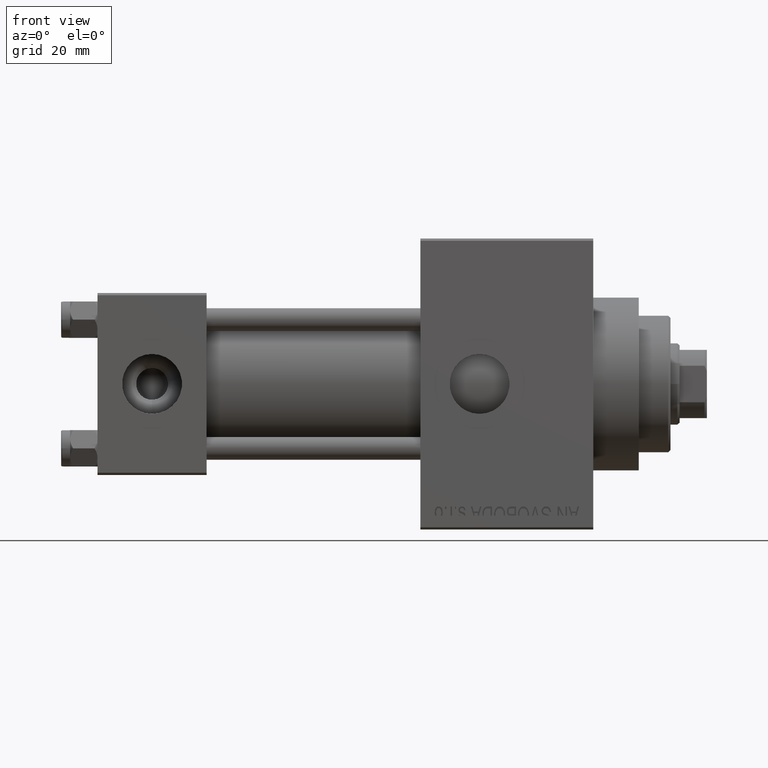
[diagram: clean part render]
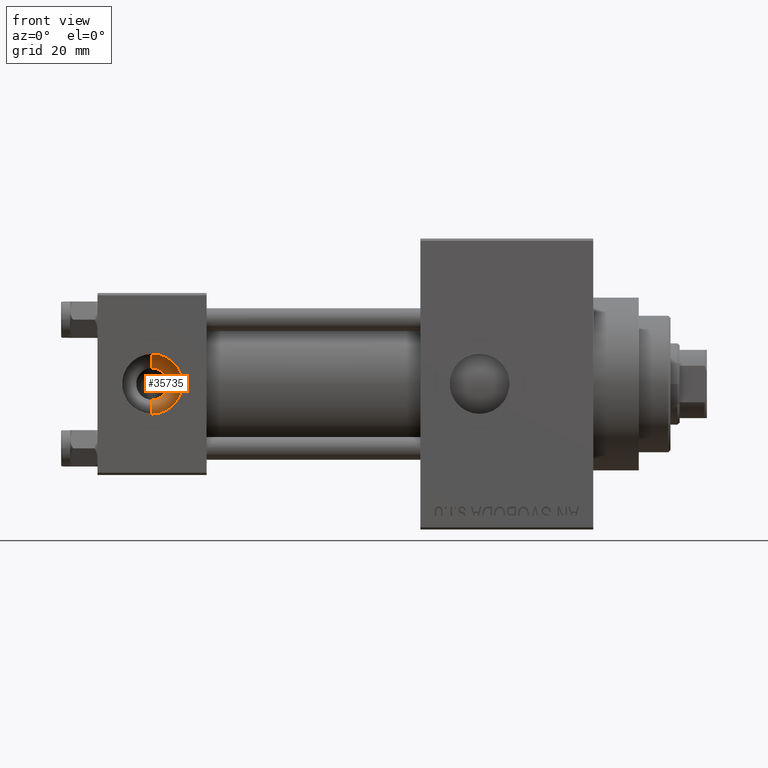
[diagram: same view with one face highlighted and labeled with its STEP entity id]
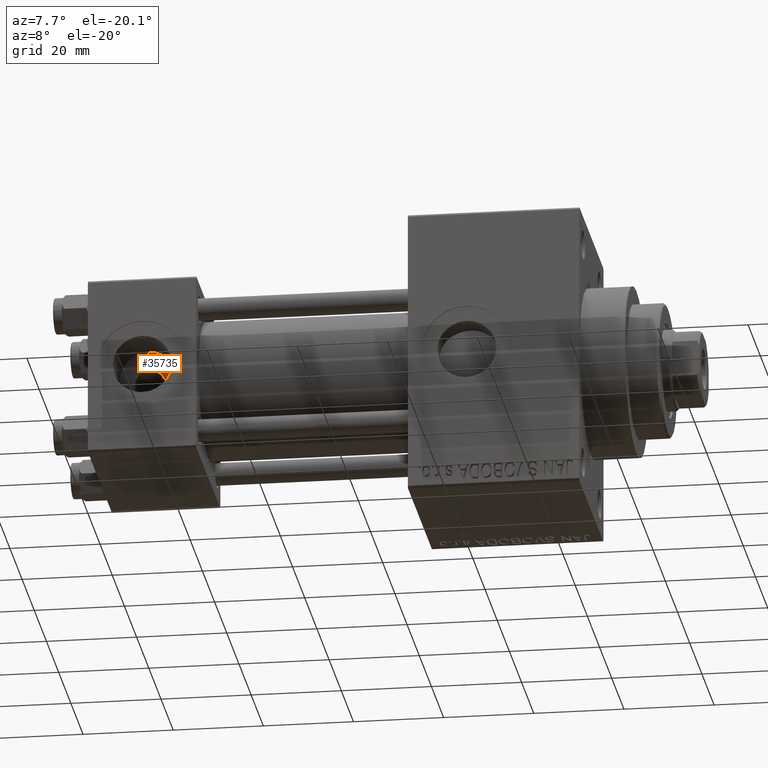
[diagram: same view with one face highlighted and labeled with its STEP entity id]
A machine part, front view. The second image highlights one B-rep face of the part: STEP entity #35735.
A second angle (auxiliary view) of the same face is appended — the face is thin or edge-on in the first view.
In plain terms, the highlighted conical surface has half-angle 45 deg.
Its self-contained STEP definition (entity closure, byte-faithful):
#770 = EDGE_LOOP ( 'NONE', ( #32036, #41552, #23589, #8328 ) ) ;
#1688 = AXIS2_PLACEMENT_3D ( 'NONE', #4228, #36578, #43013 ) ;
#2164 = DIRECTION ( 'NONE',  ( 0.000000000000000000, -0.7071067811865507924, -0.7071067811865441310 ) ) ;
#3414 = CARTESIAN_POINT ( 'NONE',  ( 12.00000000000000000, -5.959999999999951115, -5.169475958410845698E-16 ) ) ;
#3956 = VECTOR ( 'NONE', #38100, 1000.000000000000000 ) ;
#4228 = CARTESIAN_POINT ( 'NONE',  ( 12.00000000000000000, -5.959999999999951115, -5.169475958410845698E-16 ) ) ;
#8328 = ORIENTED_EDGE ( 'NONE', *, *, #11437, .F. ) ;
#10840 = AXIS2_PLACEMENT_3D ( 'NONE', #18689, #33194, #11536 ) ;
#11367 = FACE_OUTER_BOUND ( 'NONE', #770, .T. ) ;
#11437 = EDGE_CURVE ( 'NONE', #31573, #43097, #19950, .T. ) ;
#11536 = DIRECTION ( 'NONE',  ( 0.000000000000000000, 0.000000000000000000, -1.000000000000000000 ) ) ;
#12051 = CARTESIAN_POINT ( 'NONE',  ( 12.00000000000000000, -9.039999999999977831, 6.579999999999997407 ) ) ;
#13191 = CARTESIAN_POINT ( 'NONE',  ( 12.00000000000000000, -5.959999999999951115, -3.500000000000000444 ) ) ;
#17618 = CARTESIAN_POINT ( 'NONE',  ( 12.00000000000000000, -5.959999999999951115, -3.500000000000000444 ) ) ;
#18689 = CARTESIAN_POINT ( 'NONE',  ( 12.00000000000000000, -9.039999999999977831, -7.840950111415154262E-16 ) ) ;
#19780 = CARTESIAN_POINT ( 'NONE',  ( 12.00000000000000000, -5.959999999999951115, 3.499999999999999556 ) ) ;
#19950 = CIRCLE ( 'NONE', #10840, 6.579999999999998295 ) ;
#22374 = CIRCLE ( 'NONE', #28452, 3.500000000000000000 ) ;
#23589 = ORIENTED_EDGE ( 'NONE', *, *, #31093, .T. ) ;
#25941 = VECTOR ( 'NONE', #2164, 1000.000000000000114 ) ;
#26712 = LINE ( 'NONE', #26942, #3956 ) ;
#26942 = CARTESIAN_POINT ( 'NONE',  ( 12.00000000000000000, -5.959999999999951115, 3.499999999999999556 ) ) ;
#27133 = CARTESIAN_POINT ( 'NONE',  ( 12.00000000000000000, -9.039999999999977831, -6.579999999999999183 ) ) ;
#28452 = AXIS2_PLACEMENT_3D ( 'NONE', #3414, #32207, #39555 ) ;
#31093 = EDGE_CURVE ( 'NONE', #41725, #43097, #42822, .T. ) ;
#31573 = VERTEX_POINT ( 'NONE', #12051 ) ;
#32036 = ORIENTED_EDGE ( 'NONE', *, *, #36279, .F. ) ;
#32207 = DIRECTION ( 'NONE',  ( 0.000000000000000000, -1.000000000000000000, -8.673617379884039170E-17 ) ) ;
#33194 = DIRECTION ( 'NONE',  ( -0.000000000000000000, 1.000000000000000000, 8.673617379884039170E-17 ) ) ;
#35735 = ADVANCED_FACE ( 'NONE', ( #11367 ), #36619, .F. ) ;
#36279 = EDGE_CURVE ( 'NONE', #44980, #31573, #26712, .T. ) ;
#36578 = DIRECTION ( 'NONE',  ( 0.000000000000000000, -1.000000000000000000, -8.673617379884039170E-17 ) ) ;
#36619 = CONICAL_SURFACE ( 'NONE', #1688, 3.500000000000000000, 0.7853981633974433940 ) ;
#38100 = DIRECTION ( 'NONE',  ( 8.659560562354892183E-17, -0.7071067811865511255, 0.7071067811865440200 ) ) ;
#39555 = DIRECTION ( 'NONE',  ( 0.000000000000000000, 0.000000000000000000, -1.000000000000000000 ) ) ;
#41552 = ORIENTED_EDGE ( 'NONE', *, *, #41751, .F. ) ;
#41725 = VERTEX_POINT ( 'NONE', #13191 ) ;
#41751 = EDGE_CURVE ( 'NONE', #41725, #44980, #22374, .T. ) ;
#42822 = LINE ( 'NONE', #17618, #25941 ) ;
#43013 = DIRECTION ( 'NONE',  ( 0.000000000000000000, 0.000000000000000000, -1.000000000000000000 ) ) ;
#43097 = VERTEX_POINT ( 'NONE', #27133 ) ;
#44980 = VERTEX_POINT ( 'NONE', #19780 ) ;